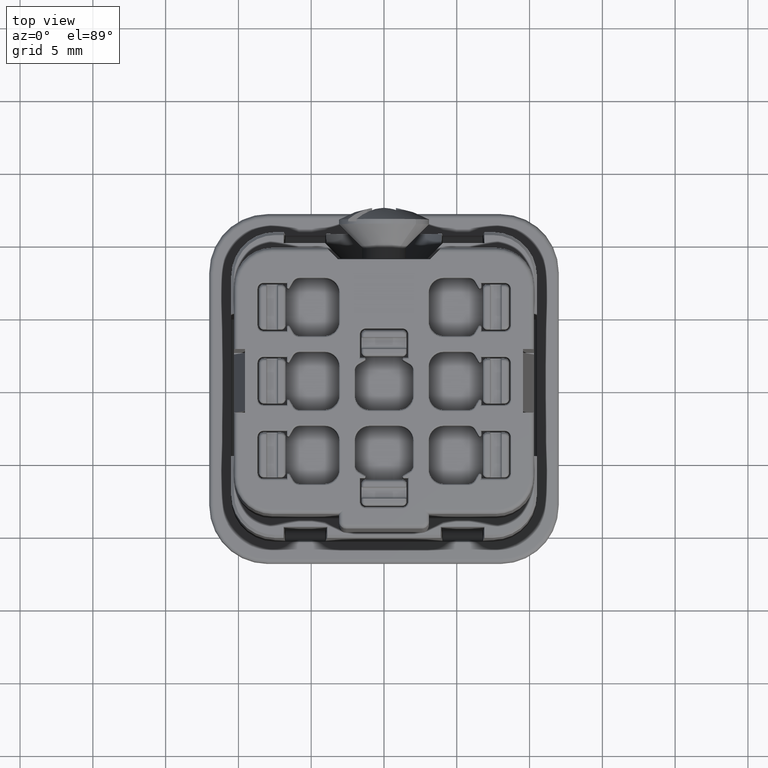
[diagram: clean part render]
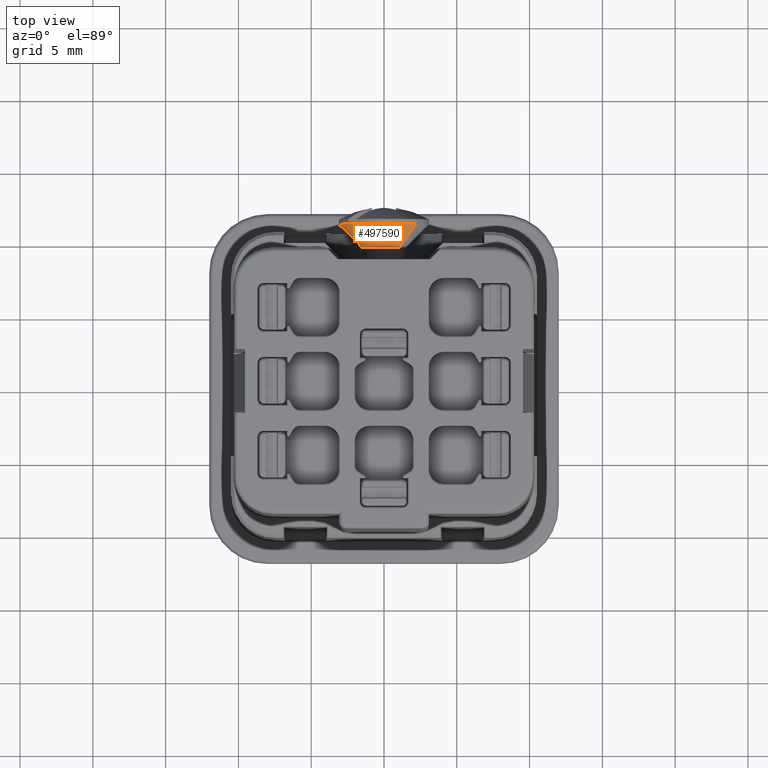
[diagram: same view with one face highlighted and labeled with its STEP entity id]
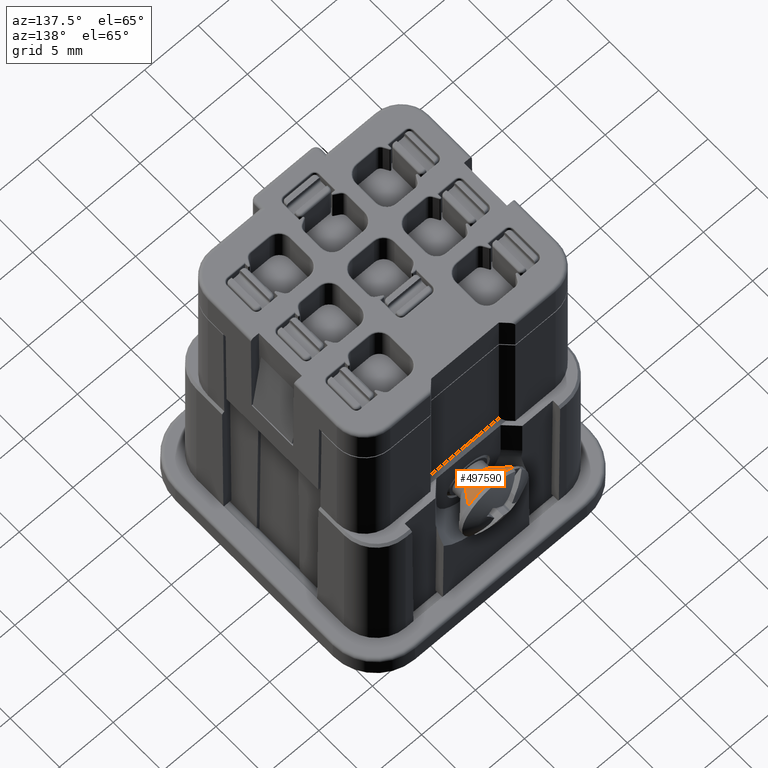
[diagram: same view with one face highlighted and labeled with its STEP entity id]
A machine part, top view. The second image highlights one B-rep face of the part: STEP entity #497590.
A second angle (auxiliary view) of the same face is appended — the face is thin or edge-on in the first view.
In plain terms, the highlighted conical surface has half-angle 45 deg.
Its self-contained STEP definition (entity closure, byte-faithful):
#457510=CARTESIAN_POINT('',(49.3449051717798,58.288879,37.5606601717798)
);
#457520=VERTEX_POINT('',#457510);
#457550=CARTESIAN_POINT('',(48.284245,58.288879,36.5));
#457560=DIRECTION('',(0.,-1.,0.));
#457570=DIRECTION('',(-0.707106781186547,0.,-0.707106781186548));
#457580=AXIS2_PLACEMENT_3D('',#457550,#457560,#457570);
#457590=CIRCLE('',#457580,1.49999999999999);
#457600=CARTESIAN_POINT('',(47.2235848282202,58.288879,35.4393398282202)
);
#457610=VERTEX_POINT('',#457600);
#496780=CARTESIAN_POINT('',(46.0922139783217,59.888879,34.3079689783217)
);
#496790=VERTEX_POINT('',#496780);
#497160=CARTESIAN_POINT('',(50.4762760216783,59.888879,38.6920310216783)
);
#497170=VERTEX_POINT('',#497160);
#497200=CARTESIAN_POINT('',(48.284245,59.888879,36.5));
#497210=DIRECTION('',(0.,-1.,0.));
#497220=DIRECTION('',(-0.707106781186547,0.,-0.707106781186548));
#497230=AXIS2_PLACEMENT_3D('',#497200,#497210,#497220);
#497240=CIRCLE('',#497230,3.09999999999999);
#497250=EDGE_CURVE('',#497170,#496790,#497240,.T.);
#497370=CARTESIAN_POINT('',(48.284245,59.888879,36.5));
#497380=DIRECTION('',(0.,1.,0.));
#497390=DIRECTION('',(0.707106781186547,0.,0.707106781186548));
#497400=AXIS2_PLACEMENT_3D('',#497370,#497380,#497390);
#497410=CONICAL_SURFACE('',#497400,3.09999999999999,0.78539816339745);
#497420=CARTESIAN_POINT('',(46.0922139783217,59.888879,34.3079689783217)
);
#497430=DIRECTION('',(-0.500000000000001,0.707106781186547,
-0.500000000000001));
#497440=VECTOR('',#497430,4.38406204335657);
#497450=LINE('',#497420,#497440);
#497460=EDGE_CURVE('',#457610,#496790,#497450,.T.);
#497470=ORIENTED_EDGE('',*,*,#497460,.F.);
#497480=ORIENTED_EDGE('',*,*,#497250,.T.);
#497490=CARTESIAN_POINT('',(50.4762760216783,59.888879,38.6920310216783)
);
#497500=DIRECTION('',(0.500000000000001,0.707106781186547,
0.500000000000001));
#497510=VECTOR('',#497500,4.38406204335657);
#497520=LINE('',#497490,#497510);
#497530=EDGE_CURVE('',#457520,#497170,#497520,.T.);
#497540=ORIENTED_EDGE('',*,*,#497530,.T.);
#497550=EDGE_CURVE('',#457520,#457610,#457590,.T.);
#497560=ORIENTED_EDGE('',*,*,#497550,.F.);
#497570=EDGE_LOOP('',(#497560,#497540,#497480,#497470));
#497580=FACE_OUTER_BOUND('',#497570,.T.);
#497590=ADVANCED_FACE('',(#497580),#497410,.T.);